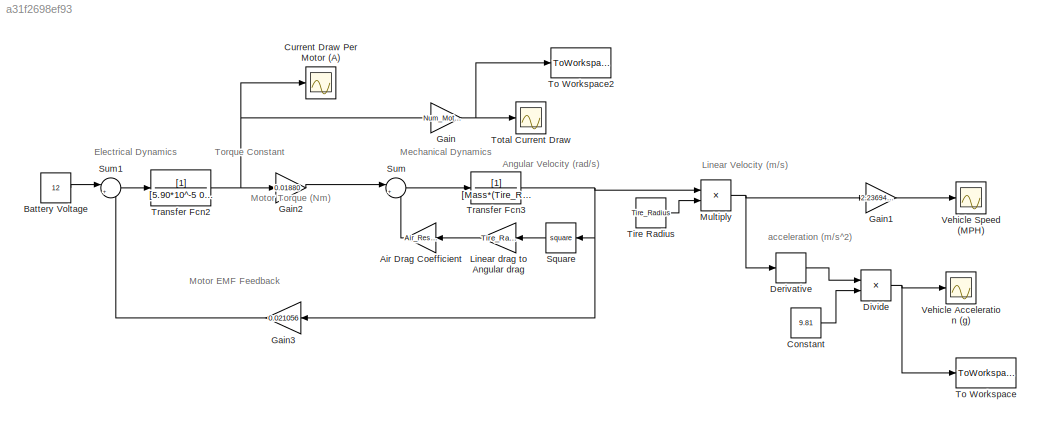
MODEL slx_a31f2698ef93
KIND model
CONFIG AbsTol = auto
CONFIG EnableMultiTasking = off
CONFIG FixedStep = auto
CONFIG MaxStep = auto
CONFIG MinStep = auto
CONFIG RelTol = 1e-3
CONFIG SampleTimeConstraint = Unconstrained
CONFIG Solver = VariableStepAuto
CONFIG SolverName = VariableStepAuto
CONFIG StartTime = 0.0
CONFIG StopTime = 2
WORKSPACE source: MAT-file member
WORKSPACE MCOS: class17 (value not decoded)
BLOCK [Gain] Air Drag Coefficient
  Gain = Air_Resistance
  OutDataTypeStr = Inherit: Inherit via internal rule
  ParamDataTypeStr = Inherit: Inherit via internal rule
  SaturateOnIntegerOverflow = off
BLOCK [Constant] Battery Voltage
  Value = 12
BLOCK [Constant] Constant
  Value = 9.81
BLOCK [Scope] Current Draw Per Motor (A)
  Floating = off
  NumInputPorts = 1
  Ports = [1]
  ScopeSpecificationString = Simulink.scopes.TimeScopeBlockCfg('CurrentConfiguration', extmgr.ConfigurationSet(extmgr.Configuration('Core','General UI',true),extmgr.Configuration('Core','Source UI',true),extmgr.Configuration('Sources','WiredSimulink',true,'DataLoggingVariableName','ScopeData2'),extmgr.Configuration('Visuals','Time Domain',true,'SerializedDisplays',{struct('MinYLimReal','-16.24169','MaxYLimReal','146.17523','Y...<+1728ch>
BLOCK [Derivative] Derivative
BLOCK [Product] Divide
  InputSameDT = off
  Inputs = */
  OutDataTypeStr = Inherit: Inherit via internal rule
  Ports = [2, 1]
  RndMeth = Floor
  SaturateOnIntegerOverflow = off
BLOCK [Gain] Gain
  Gain = Num_Motors
  OutDataTypeStr = Inherit: Inherit via internal rule
  ParamDataTypeStr = Inherit: Inherit via internal rule
  SaturateOnIntegerOverflow = off
BLOCK [Gain] Gain1
  Gain = 2.23694/Gear_Ratio
  OutDataTypeStr = Inherit: Inherit via internal rule
  ParamDataTypeStr = Inherit: Inherit via internal rule
  SaturateOnIntegerOverflow = off
BLOCK [Gain] Gain2
  Gain = 0.01880
  OutDataTypeStr = Inherit: Inherit via internal rule
  ParamDataTypeStr = Inherit: Inherit via internal rule
  SaturateOnIntegerOverflow = off
BLOCK [Gain] Gain3
  Gain = 0.021056
  OutDataTypeStr = Inherit: Inherit via internal rule
  ParamDataTypeStr = Inherit: Inherit via internal rule
  SaturateOnIntegerOverflow = off
BLOCK [Gain] Linear drag to Angular drag
  Gain = Tire_Radius^3/(Gear_Ratio^2*Num_Motors^2)
  OutDataTypeStr = Inherit: Inherit via internal rule
  ParamDataTypeStr = Inherit: Inherit via internal rule
  SaturateOnIntegerOverflow = off
BLOCK [Product] Multiply
  InputSameDT = off
  OutDataTypeStr = Inherit: Inherit via internal rule
  Ports = [2, 1]
  RndMeth = Floor
  SaturateOnIntegerOverflow = off
BLOCK [Math] Square
  Operator = square
  Ports = [1, 1]
BLOCK [Sum] Sum
  IconShape = round
  InputSameDT = off
  Inputs = |+-
  OutDataTypeStr = Inherit: Inherit via internal rule
  Ports = [2, 1]
  SaturateOnIntegerOverflow = off
BLOCK [Sum] Sum1
  IconShape = round
  InputSameDT = off
  Inputs = |+-
  OutDataTypeStr = Inherit: Inherit via internal rule
  Ports = [2, 1]
  SaturateOnIntegerOverflow = off
BLOCK [Constant] Tire Radius
  Value = Tire_Radius
BLOCK [ToWorkspace] To Workspace
  FixptAsFi = on
  MaxDataPoints = inf
  Ports = [1]
  SampleTime = -1
  SaveFormat = Timeseries
  VariableName = Acceleration
BLOCK [ToWorkspace] To Workspace2
  FixptAsFi = on
  MaxDataPoints = inf
  Ports = [1]
  SampleTime = -1
  SaveFormat = Timeseries
  VariableName = Current
BLOCK [Scope] Total Current Draw
  Floating = off
  NumInputPorts = 1
  Ports = [1]
  ScopeSpecificationString = Simulink.scopes.TimeScopeBlockCfg('CurrentConfiguration', extmgr.ConfigurationSet(extmgr.Configuration('Core','General UI',true),extmgr.Configuration('Core','Source UI',true),extmgr.Configuration('Sources','WiredSimulink',true,'DataLoggingVariableName','ScopeData1'),extmgr.Configuration('Visuals','Time Domain',true,'SerializedDisplays',{struct('MinYLimReal','-97.45015','MaxYLimReal','877.05136','Y...<+1373ch>
BLOCK [TransferFcn] Transfer Fcn2
  Denominator = [5.90*10^-5 0.091565]
BLOCK [TransferFcn] Transfer Fcn3
  Denominator = [Mass*(Tire_Radius)^2/(Gear_Ratio^2*Num_Motors^2)+7.75E-05\n\n 8.90538*10^-5]
BLOCK [Scope] Vehicle Acceleration (g)
  Floating = off
  NumInputPorts = 1
  Ports = [1]
  ScopeSpecificationString = Simulink.scopes.TimeScopeBlockCfg('CurrentConfiguration', extmgr.ConfigurationSet(extmgr.Configuration('Core','General UI',true),extmgr.Configuration('Core','Source UI',true),extmgr.Configuration('Sources','WiredSimulink',true,'DataLoggingVariableName','ScopeData1'),extmgr.Configuration('Visuals','Time Domain',true,'SerializedDisplays',{struct('MinYLimReal','-3.81799','MaxYLimReal','34.36191','YLa...<+1369ch>
BLOCK [Scope] Vehicle Speed (MPH)
  Floating = off
  NumInputPorts = 1
  Ports = [1]
  ScopeSpecificationString = Simulink.scopes.TimeScopeBlockCfg('CurrentConfiguration', extmgr.ConfigurationSet(extmgr.Configuration('Core','General UI',true),extmgr.Configuration('Core','Source UI',true),extmgr.Configuration('Sources','WiredSimulink',true),extmgr.Configuration('Visuals','Time Domain',true,'SerializedDisplays',{struct('MinYLimReal','-2.64066','MaxYLimReal','23.76592','YLabelReal','','MinYLimMag','0.00000','Max...<+1401ch>
ANNOTATION (root): Angular Velocity (rad/s)
ANNOTATION (root): Electrical Dynamics
ANNOTATION (root): Linear Velocity (m/s)
ANNOTATION (root): Mechanical Dynamics
ANNOTATION (root): Motor EMF Feedback
ANNOTATION (root): Motor Torque (Nm)
ANNOTATION (root): Torque Constant
ANNOTATION (root): acceleration (m/s^2)
LINE Air Drag Coefficient:1 -> Sum:2
LINE Battery Voltage:1 -> Sum1:1
LINE Constant:1 -> Divide:2
LINE Derivative:1 -> Divide:1
NET Divide:1 -> To Workspace:1, Vehicle Acceleration (g):1
LINE Gain1:1 -> Vehicle Speed (MPH):1
LINE Gain2:1 -> Sum:1
LINE Gain3:1 -> Sum1:2
NET Gain:1 -> To Workspace2:1, Total Current Draw:1
LINE Linear drag to Angular drag:1 -> Air Drag Coefficient:1
NET Multiply:1 -> Derivative:1, Gain1:1
LINE Square:1 -> Linear drag to Angular drag:1
LINE Sum1:1 -> Transfer Fcn2:1
LINE Sum:1 -> Transfer Fcn3:1
LINE Tire Radius:1 -> Multiply:2
NET Transfer Fcn2:1 -> Current Draw Per Motor (A):1, Gain2:1, Gain:1
NET Transfer Fcn3:1 -> Gain3:1, Multiply:1, Square:1
note: NET lines group one-source signal fan-out (src -> all destinations, sorted); 1:1 wires keep LINE
